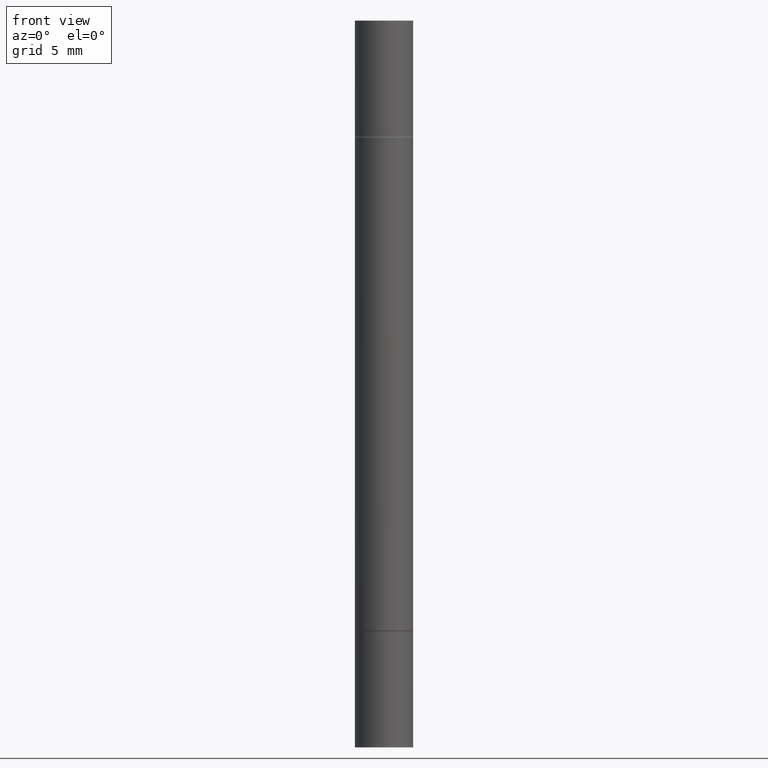
[diagram: clean part render]
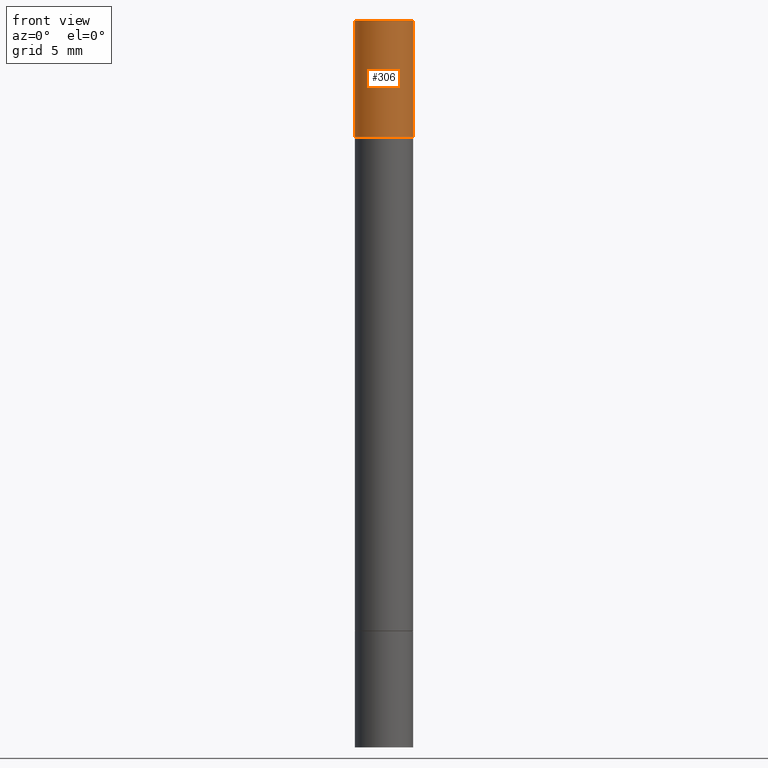
[diagram: same view with one face highlighted and labeled with its STEP entity id]
A machine part, front view. The second image highlights one B-rep face of the part: STEP entity #306.
In plain terms, the highlighted cylindrical surface (edge-blend (fillet) strip) has radius 2.0002 mm, axis along (-0, -0, -1).
Its self-contained STEP definition (entity closure, byte-faithful):
#18 = VERTEX_POINT ( 'NONE', #177 ) ;
#25 = EDGE_CURVE ( 'NONE', #595, #18, #361, .T. ) ;
#33 = VERTEX_POINT ( 'NONE', #655 ) ;
#34 = CARTESIAN_POINT ( 'NONE',  ( 4.813905344975441835E-29, 1.386879813447681415E-18, 2.731847993664263218E-16 ) ) ;
#57 = AXIS2_PLACEMENT_3D ( 'NONE', #34, #545, #246 ) ;
#97 = CYLINDRICAL_SURFACE ( 'NONE', #630, 0.07875000000000000056 ) ;
#157 = DIRECTION ( 'NONE',  ( 1.000000000000000000, -6.982962677686261977E-15, 0.000000000000000000 ) ) ;
#177 = CARTESIAN_POINT ( 'NONE',  ( 0.07875000000000000056, -1.648781910693147813E-15, -0.3149999999999997802 ) ) ;
#193 = CARTESIAN_POINT ( 'NONE',  ( -0.07875000000000000056, -6.334103678001670420E-15, -1.968499999999999694 ) ) ;
#213 = VECTOR ( 'NONE', #559, 39.37007874015748143 ) ;
#225 = CARTESIAN_POINT ( 'NONE',  ( 4.043582671027123201E-29, -1.098873599825354270E-15, -0.3149999999999997802 ) ) ;
#230 = DIRECTION ( 'NONE',  ( 1.000000000000000000, -6.982962677686268288E-15, 0.000000000000000000 ) ) ;
#239 = VERTEX_POINT ( 'NONE', #513 ) ;
#243 = ORIENTED_EDGE ( 'NONE', *, *, #592, .F. ) ;
#246 = DIRECTION ( 'NONE',  ( 1.000000000000000000, -6.982962677686265922E-15, 0.000000000000000000 ) ) ;
#248 = VECTOR ( 'NONE', #650, 39.37007874015748143 ) ;
#289 = ORIENTED_EDGE ( 'NONE', *, *, #537, .F. ) ;
#306 = ADVANCED_FACE ( 'NONE', ( #572 ), #97, .T. ) ;
#310 = DIRECTION ( 'NONE',  ( -2.445468806185136597E-29, -3.492890411551752677E-15, -1.000000000000000000 ) ) ;
#336 = EDGE_LOOP ( 'NONE', ( #289, #353, #604, #243 ) ) ;
#343 = LINE ( 'NONE', #402, #248 ) ;
#346 = CARTESIAN_POINT ( 'NONE',  ( -0.07875000000000000056, -8.479142681445664027E-18, -0.3149999999999997802 ) ) ;
#353 = ORIENTED_EDGE ( 'NONE', *, *, #576, .T. ) ;
#361 = CIRCLE ( 'NONE', #664, 0.07875000000000000056 ) ;
#402 = CARTESIAN_POINT ( 'NONE',  ( 0.07875000000000000056, -7.424276206193971655E-15, -1.968499999999999694 ) ) ;
#436 = DIRECTION ( 'NONE',  ( 2.445468806185136597E-29, 3.492890411551752677E-15, 1.000000000000000000 ) ) ;
#466 = CARTESIAN_POINT ( 'NONE',  ( 0.000000000000000000, -6.874367895326177521E-15, -1.968499999999999694 ) ) ;
#498 = LINE ( 'NONE', #193, #213 ) ;
#513 = CARTESIAN_POINT ( 'NONE',  ( -0.07875000000000000056, -8.479142681445664027E-18, 2.731847993664282447E-16 ) ) ;
#537 = EDGE_CURVE ( 'NONE', #239, #33, #542, .T. ) ;
#542 = CIRCLE ( 'NONE', #57, 0.07875000000000000056 ) ;
#545 = DIRECTION ( 'NONE',  ( 2.445468806185136597E-29, 3.492890411551752677E-15, 1.000000000000000000 ) ) ;
#559 = DIRECTION ( 'NONE',  ( -2.445468806185136877E-29, -3.492890411551753071E-15, -1.000000000000000000 ) ) ;
#572 = FACE_OUTER_BOUND ( 'NONE', #336, .T. ) ;
#576 = EDGE_CURVE ( 'NONE', #239, #595, #498, .T. ) ;
#592 = EDGE_CURVE ( 'NONE', #33, #18, #343, .T. ) ;
#595 = VERTEX_POINT ( 'NONE', #346 ) ;
#604 = ORIENTED_EDGE ( 'NONE', *, *, #25, .T. ) ;
#630 = AXIS2_PLACEMENT_3D ( 'NONE', #466, #310, #157 ) ;
#650 = DIRECTION ( 'NONE',  ( -2.445468806185136877E-29, -3.492890411551753071E-15, -1.000000000000000000 ) ) ;
#655 = CARTESIAN_POINT ( 'NONE',  ( 0.07875000000000000056, -5.485214310543458561E-16, 2.731847993664263218E-16 ) ) ;
#664 = AXIS2_PLACEMENT_3D ( 'NONE', #225, #436, #230 ) ;